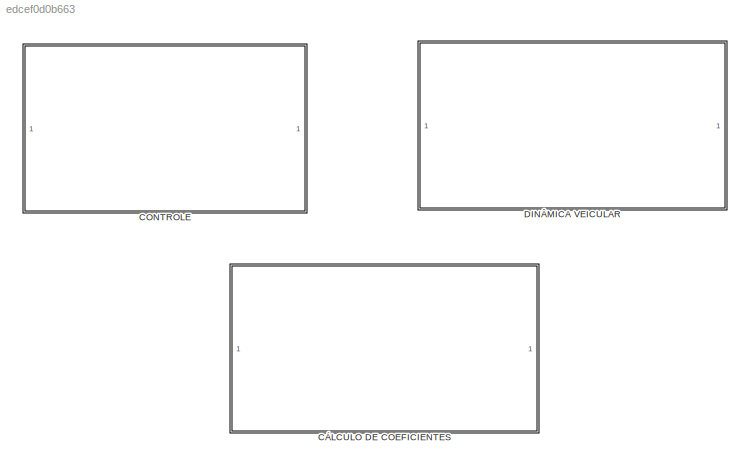
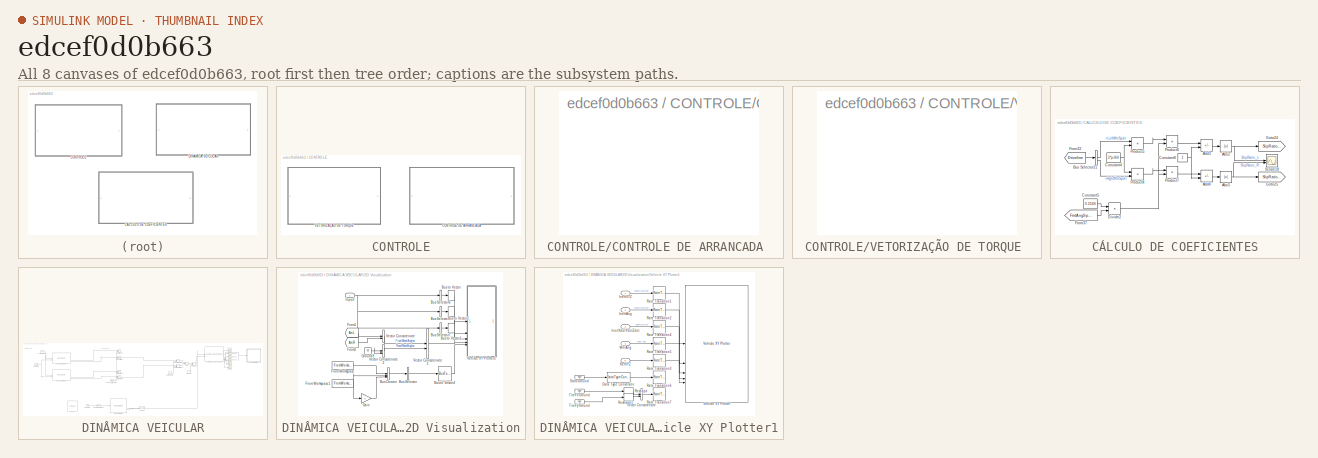
[diagram: thumbnail index - all 8 canvases of the model, root first then tree order]
MODEL slx_edcef0d0b663
KIND model
CONFIG AbsTol = auto
CONFIG EnableMultiTasking = off
CONFIG FixedStep = auto
CONFIG MaxStep = auto
CONFIG MinStep = auto
CONFIG RelTol = 1e-3
CONFIG SampleTimeConstraint = Unconstrained
CONFIG SolverName = VariableStepAuto
CONFIG StartTime = 0.0
CONFIG StopTime = 10.0
BLOCK [SubSystem] CONTROLE
BLOCK [SubSystem] CONTROLE/CONTROLE DE ARRANCADA 
BLOCK [SubSystem] CONTROLE/VETORIZAÇÃO DE TORQUE 
BLOCK [SubSystem] CÁLCULO DE COEFICIENTES
BLOCK [Abs] CÁLCULO DE COEFICIENTES/Abs2
  SaturateOnIntegerOverflow = off
BLOCK [Abs] CÁLCULO DE COEFICIENTES/Abs5
  SaturateOnIntegerOverflow = off
BLOCK [Sum] CÁLCULO DE COEFICIENTES/Add3
  IconShape = rectangular
  Inputs = +-
BLOCK [Sum] CÁLCULO DE COEFICIENTES/Add4
  IconShape = rectangular
  Inputs = +-
BLOCK [BusSelector] CÁLCULO DE COEFICIENTES/Bus Selector21
  OutputSignals = LeftMtrSpd,RghtMtrSpd
BLOCK [Constant] CÁLCULO DE COEFICIENTES/Constant4
  Value = 2*pi/60
BLOCK [Constant] CÁLCULO DE COEFICIENTES/Constant5
  Value = 0.2566
BLOCK [Constant] CÁLCULO DE COEFICIENTES/Constant6
BLOCK [Product] CÁLCULO DE COEFICIENTES/Divide2
  Inputs = */
BLOCK [From] CÁLCULO DE COEFICIENTES/From32
  GotoTag = Driveline
BLOCK [From] CÁLCULO DE COEFICIENTES/From37
  GotoTag = FrntAvgSpeed
BLOCK [Goto] CÁLCULO DE COEFICIENTES/Goto24
  GotoTag = SlipRatio_L
BLOCK [Goto] CÁLCULO DE COEFICIENTES/Goto25
  GotoTag = SlipRatio_R
BLOCK [Product] CÁLCULO DE COEFICIENTES/Product4
BLOCK [Product] CÁLCULO DE COEFICIENTES/Product5
BLOCK [Product] CÁLCULO DE COEFICIENTES/Product6
BLOCK [Product] CÁLCULO DE COEFICIENTES/Product7
BLOCK [Scope] CÁLCULO DE COEFICIENTES/Scope18
  Floating = off
  NumInputPorts = 2
  ScopeSpecificationString = Simulink.scopes.TimeScopeBlockCfg('CurrentConfiguration', extmgr.ConfigurationSet(extmgr.Configuration('Core','General UI',true),extmgr.Configuration('Core','Source UI',true),extmgr.Configuration('Sources','WiredSimulink',true,'DataLoggingVariableName','ScopeData1'),extmgr.Configuration('Visuals','Time Domain',true,'SerializedDisplays',{struct('MinYLimReal','-0.01332','MaxYLimReal','0.12067','YLab...<+1460ch>
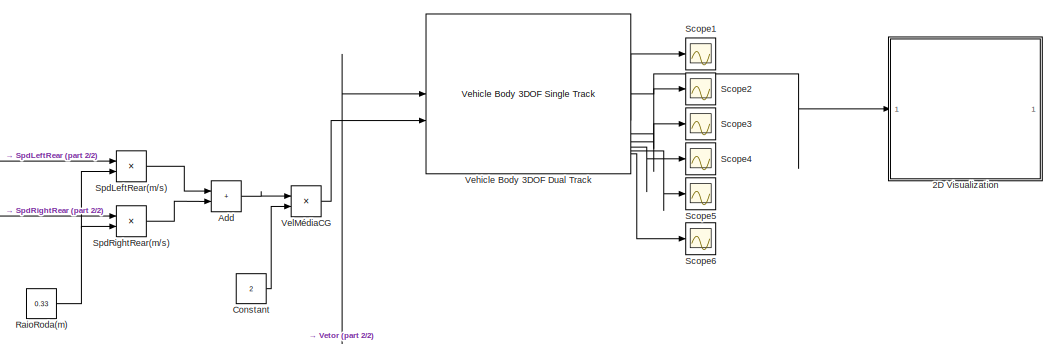
[diagram: DINÂMICA VEICULAR - part 1/2, top right region]
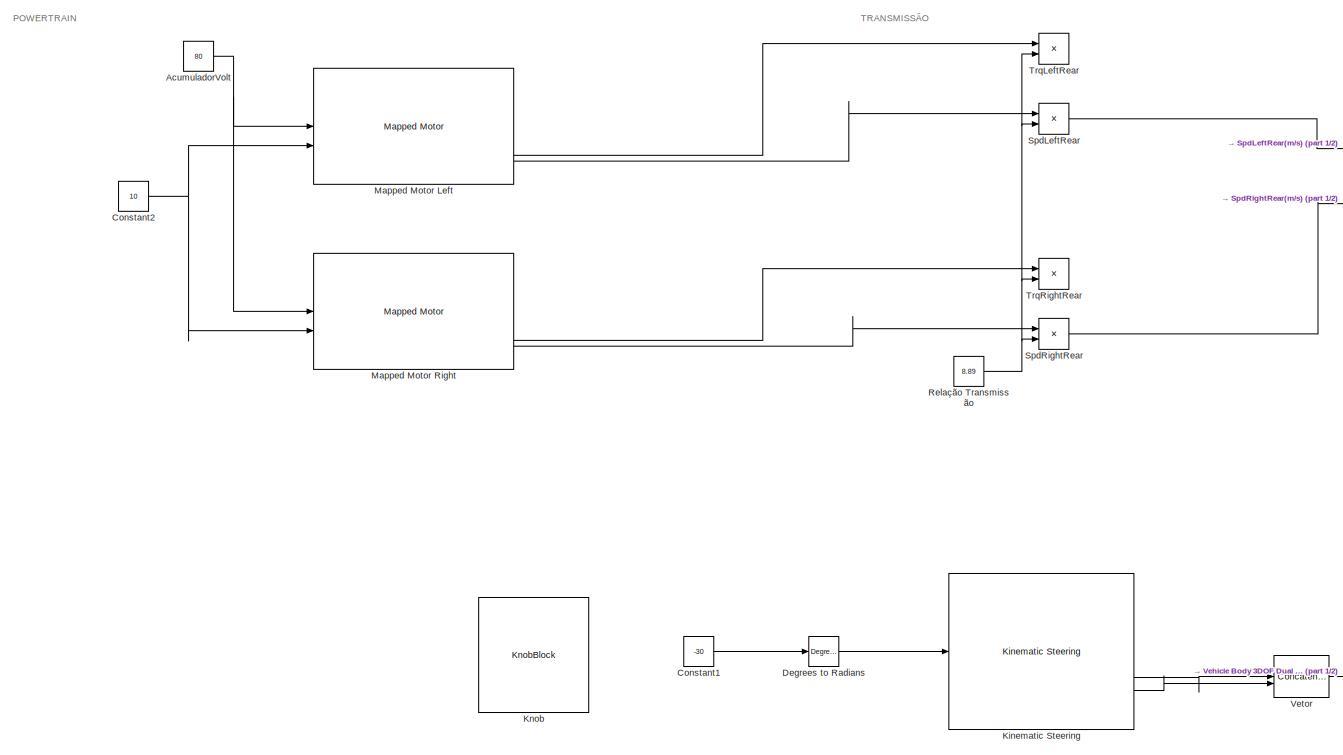
[diagram: DINÂMICA VEICULAR - part 2/2, left side, full height]
BLOCK [SubSystem] DINÂMICA VEICULAR
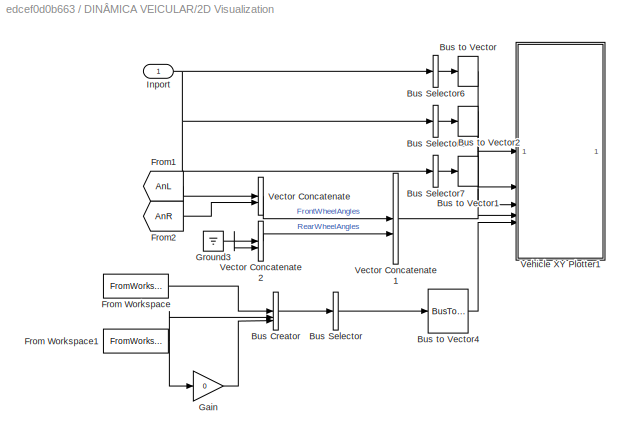
BLOCK [SubSystem] DINÂMICA VEICULAR/2D Visualization
BLOCK [BusCreator] DINÂMICA VEICULAR/2D Visualization/Bus Creator
  DisplayOption = bar
  InheritFromInputs = on
  Inputs = 3
BLOCK [BusSelector] DINÂMICA VEICULAR/2D Visualization/Bus Selector
  OutputAsBus = on
  OutputSignals = signal1,signal2,signal3
BLOCK [BusSelector] DINÂMICA VEICULAR/2D Visualization/Bus Selector1
  OutputAsBus = on
  OutputSignals = InertFrm.Cg.Ang.phi,InertFrm.Cg.Ang.theta,InertFrm.Cg.Ang.psi
BLOCK [BusSelector] DINÂMICA VEICULAR/2D Visualization/Bus Selector6
  OutputAsBus = on
  OutputSignals = InertFrm.Geom.Disp.X,InertFrm.Geom.Disp.Y,InertFrm.Geom.Disp.Z
BLOCK [BusSelector] DINÂMICA VEICULAR/2D Visualization/Bus Selector7
  OutputAsBus = on
  OutputSignals = InertFrm.Geom.Vel.Xdot,InertFrm.Geom.Vel.Ydot,InertFrm.Geom.Vel.Zdot
BLOCK [BusToVector] DINÂMICA VEICULAR/2D Visualization/Bus to Vector
BLOCK [BusToVector] DINÂMICA VEICULAR/2D Visualization/Bus to Vector1
BLOCK [BusToVector] DINÂMICA VEICULAR/2D Visualization/Bus to Vector2
BLOCK [BusToVector] DINÂMICA VEICULAR/2D Visualization/Bus to Vector4
BLOCK [FromWorkspace] DINÂMICA VEICULAR/2D Visualization/From Workspace
  VariableName = [tRef xRef]
BLOCK [FromWorkspace] DINÂMICA VEICULAR/2D Visualization/From Workspace1
  VariableName = [tRef yRef]
BLOCK [From] DINÂMICA VEICULAR/2D Visualization/From1
  GotoTag = AnL
BLOCK [From] DINÂMICA VEICULAR/2D Visualization/From2
  GotoTag = AnR
BLOCK [Gain] DINÂMICA VEICULAR/2D Visualization/Gain
  Gain = 0
BLOCK [Ground] DINÂMICA VEICULAR/2D Visualization/Ground3
BLOCK [Inport] DINÂMICA VEICULAR/2D Visualization/Inport
BLOCK [Concatenate] DINÂMICA VEICULAR/2D Visualization/Vector Concatenate
BLOCK [Concatenate] DINÂMICA VEICULAR/2D Visualization/Vector Concatenate1
BLOCK [Concatenate] DINÂMICA VEICULAR/2D Visualization/Vector Concatenate2
BLOCK [SubSystem] DINÂMICA VEICULAR/2D Visualization/Vehicle XY Plotter1
BLOCK [DataTypeConversion] DINÂMICA VEICULAR/2D Visualization/Vehicle XY Plotter1/Data Type Conversion
  OutDataTypeStr = double
  RndMeth = Floor
  SaturateOnIntegerOverflow = off
BLOCK [Inport] DINÂMICA VEICULAR/2D Visualization/Vehicle XY Plotter1/InertAng
  Port = 2
BLOCK [Inport] DINÂMICA VEICULAR/2D Visualization/Vehicle XY Plotter1/InertXYZ
BLOCK [Inport] DINÂMICA VEICULAR/2D Visualization/Vehicle XY Plotter1/InertXdotYdotZdot
  Port = 3
BLOCK [RateTransition] DINÂMICA VEICULAR/2D Visualization/Vehicle XY Plotter1/Rate Transition1
  Deterministic = off
  OutPortSampleTime = pltDT
BLOCK [RateTransition] DINÂMICA VEICULAR/2D Visualization/Vehicle XY Plotter1/Rate Transition2
  Deterministic = off
  OutPortSampleTime = pltDT
BLOCK [RateTransition] DINÂMICA VEICULAR/2D Visualization/Vehicle XY Plotter1/Rate Transition3
  Deterministic = off
  OutPortSampleTime = pltDT
BLOCK [RateTransition] DINÂMICA VEICULAR/2D Visualization/Vehicle XY Plotter1/Rate Transition4
  Deterministic = off
  OutPortSampleTime = pltDT
BLOCK [RateTransition] DINÂMICA VEICULAR/2D Visualization/Vehicle XY Plotter1/Rate Transition5
  Deterministic = off
  OutPortSampleTime = pltDT
BLOCK [RateTransition] DINÂMICA VEICULAR/2D Visualization/Vehicle XY Plotter1/Rate Transition6
  Deterministic = off
  OutPortSampleTime = pltDT
BLOCK [RateTransition] DINÂMICA VEICULAR/2D Visualization/Vehicle XY Plotter1/Rate Transition7
  Deterministic = off
  OutPortSampleTime = pltDT
BLOCK [Inport] DINÂMICA VEICULAR/2D Visualization/Vehicle XY Plotter1/RefXYZ
  Port = 5
BLOCK [Reshape] DINÂMICA VEICULAR/2D Visualization/Vehicle XY Plotter1/Reshape
  OutputDimensionality = Row vector (2-D)
BLOCK [Reshape] DINÂMICA VEICULAR/2D Visualization/Vehicle XY Plotter1/Reshape1
  OutputDimensionality = Row vector (2-D)
BLOCK [Ground] DINÂMICA VEICULAR/2D Visualization/Vehicle XY Plotter1/Stats Ground
BLOCK [Ground] DINÂMICA VEICULAR/2D Visualization/Vehicle XY Plotter1/TireFx Ground
BLOCK [Ground] DINÂMICA VEICULAR/2D Visualization/Vehicle XY Plotter1/TireFy Ground
BLOCK [Concatenate] DINÂMICA VEICULAR/2D Visualization/Vehicle XY Plotter1/Vector Concatenate
  Mode = Multidimensional array
BLOCK [Reference] DINÂMICA VEICULAR/2D Visualization/Vehicle XY Plotter1/Vehicle XY Plotter  REF=vehdynlibviscommon/Vehicle XY Plotter
  SourceBlock = vehdynlibviscommon/Vehicle XY Plotter
  SourceType = Vehicle XY Plotter
BLOCK [Inport] DINÂMICA VEICULAR/2D Visualization/Vehicle XY Plotter1/WhlAng
  Port = 4
BLOCK [Constant] DINÂMICA VEICULAR/AcumuladorVolt
  Value = 80
BLOCK [Sum] DINÂMICA VEICULAR/Add
  IconShape = rectangular
BLOCK [Constant] DINÂMICA VEICULAR/Constant
  Value = 2
BLOCK [Constant] DINÂMICA VEICULAR/Constant1
  OutMax = 30
  OutMin = -30
  Value = -30
BLOCK [Constant] DINÂMICA VEICULAR/Constant2
  Value = 10
BLOCK [Reference] DINÂMICA VEICULAR/Degrees to Radians  REF=simulink_extras/Transformations/Degrees to
Radians
  SourceBlock = simulink_extras/Transformations/Degrees to\nRadians
  SourceType = DegreesToRadians
BLOCK [Reference] DINÂMICA VEICULAR/Kinematic Steering  REF=vehdynlibsteering/Kinematic Steering
  SourceBlock = vehdynlibsteering/Kinematic Steering
  SourceType = Kinematic Steering
BLOCK [KnobBlock] DINÂMICA VEICULAR/Knob
  ScaleMax = 30
  ScaleMin = -30
BLOCK [Reference] DINÂMICA VEICULAR/Mapped Motor Left  REF=autolibmappedmotor/Mapped Motor
  LibrarySourceBlock = vdynlib/Powertrain/Propulsion/Mapped Motor
  SourceBlock = autolibmappedmotor/Mapped Motor
  SourceType = MappedMotor
BLOCK [Reference] DINÂMICA VEICULAR/Mapped Motor Right  REF=autolibmappedmotor/Mapped Motor
  LibrarySourceBlock = vdynlib/Powertrain/Propulsion/Mapped Motor
  SourceBlock = autolibmappedmotor/Mapped Motor
  SourceType = MappedMotor
BLOCK [Constant] DINÂMICA VEICULAR/RaioRoda(m)
  Value = 0.33
  VectorParams1D = off
BLOCK [Constant] DINÂMICA VEICULAR/Relação Transmissão
  Value = 8.89
BLOCK [Scope] DINÂMICA VEICULAR/Scope1
  Floating = off
  NumInputPorts = 1
  ScopeSpecificationString = Simulink.scopes.TimeScopeBlockCfg('CurrentConfiguration', extmgr.ConfigurationSet(extmgr.Configuration('Core','General UI',true),extmgr.Configuration('Core','Source UI',true),extmgr.Configuration('Sources','WiredSimulink',true,'DataLoggingVariableName','ScopeData1'),extmgr.Configuration('Visuals','Time Domain',true,'SerializedDisplays',{struct('MinYLimReal','-3.68571','MaxYLimReal','33.17139','YLa...<+1482ch>
BLOCK [Scope] DINÂMICA VEICULAR/Scope2
  Floating = off
  NumInputPorts = 1
  ScopeSpecificationString = Simulink.scopes.TimeScopeBlockCfg('CurrentConfiguration', extmgr.ConfigurationSet(extmgr.Configuration('Core','General UI',true),extmgr.Configuration('Core','Source UI',true),extmgr.Configuration('Sources','WiredSimulink',true),extmgr.Configuration('Visuals','Time Domain',true,'SerializedDisplays',{struct('MinYLimReal','-1.20827','MaxYLimReal','6.62524','YLabelReal','','MinYLimMag','0.00000','MaxY...<+1466ch>
BLOCK [Scope] DINÂMICA VEICULAR/Scope3
  Floating = off
  NumInputPorts = 1
  ScopeSpecificationString = Simulink.scopes.TimeScopeBlockCfg('CurrentConfiguration', extmgr.ConfigurationSet(extmgr.Configuration('Core','General UI',true),extmgr.Configuration('Core','Source UI',true),extmgr.Configuration('Sources','WiredSimulink',true,'DataLoggingVariableName','ScopeData2'),extmgr.Configuration('Visuals','Time Domain',true,'SerializedDisplays',{struct('MinYLimReal','-0.14479','MaxYLimReal','1.30312','YLab...<+1480ch>
BLOCK [Scope] DINÂMICA VEICULAR/Scope4
  Floating = off
  NumInputPorts = 1
  ScopeSpecificationString = Simulink.scopes.TimeScopeBlockCfg('CurrentConfiguration', extmgr.ConfigurationSet(extmgr.Configuration('Core','General UI',true),extmgr.Configuration('Core','Source UI',true),extmgr.Configuration('Sources','WiredSimulink',true,'DataLoggingVariableName','ScopeData3'),extmgr.Configuration('Visuals','Time Domain',true,'SerializedDisplays',{struct('MinYLimReal','-0.25195','MaxYLimReal','0.0459','YLabe...<+1476ch>
BLOCK [Scope] DINÂMICA VEICULAR/Scope5
  Floating = off
  NumInputPorts = 1
  ScopeSpecificationString = Simulink.scopes.TimeScopeBlockCfg('CurrentConfiguration', extmgr.ConfigurationSet(extmgr.Configuration('Core','General UI',true),extmgr.Configuration('Core','Source UI',true),extmgr.Configuration('Sources','WiredSimulink',true,'DataLoggingVariableName','ScopeData4'),extmgr.Configuration('Visuals','Time Domain',true,'SerializedDisplays',{struct('MinYLimReal','3759.37292','MaxYLimReal','6539.39321',...<+1537ch>
BLOCK [Scope] DINÂMICA VEICULAR/Scope6
  Floating = off
  NumInputPorts = 1
  ScopeSpecificationString = Simulink.scopes.TimeScopeBlockCfg('CurrentConfiguration', extmgr.ConfigurationSet(extmgr.Configuration('Core','General UI',true),extmgr.Configuration('Core','Source UI',true),extmgr.Configuration('Sources','WiredSimulink',true,'DataLoggingVariableName','ScopeData5'),extmgr.Configuration('Visuals','Time Domain',true,'SerializedDisplays',{struct('MinYLimReal','3329.0279','MaxYLimReal','6109.04819','...<+1533ch>
BLOCK [Product] DINÂMICA VEICULAR/SpdLeftRear
  Inputs = */
BLOCK [Product] DINÂMICA VEICULAR/SpdLeftRear(m//s)
BLOCK [Product] DINÂMICA VEICULAR/SpdRightRear
  Inputs = */
BLOCK [Product] DINÂMICA VEICULAR/SpdRightRear(m//s)
BLOCK [Product] DINÂMICA VEICULAR/TrqLeftRear
BLOCK [Product] DINÂMICA VEICULAR/TrqRightRear
BLOCK [Reference] DINÂMICA VEICULAR/Vehicle Body 3DOF Dual Track  REF=autolibshared/Vehicle Body 3DOF Single Track
  LibrarySourceBlock = vehdynlibeom/Vehicle Body 3DOF Dual Track
  SourceBlock = autolibshared/Vehicle Body 3DOF Single Track
  SourceType = Vehicle Body 3DOF Lateral
BLOCK [Product] DINÂMICA VEICULAR/VelMédiaCG
  Inputs = */
BLOCK [Concatenate] DINÂMICA VEICULAR/Vetor
  ConcatenateDimension = 2
ANNOTATION DINÂMICA VEICULAR: POWERTRAIN
ANNOTATION DINÂMICA VEICULAR: TRANSMISSÃO
NET CÁLCULO DE COEFICIENTES/Abs2:1 -> CÁLCULO DE COEFICIENTES/Goto24:1, CÁLCULO DE COEFICIENTES/Scope18:1
NET CÁLCULO DE COEFICIENTES/Abs5:1 -> CÁLCULO DE COEFICIENTES/Goto25:1, CÁLCULO DE COEFICIENTES/Scope18:2
LINE CÁLCULO DE COEFICIENTES/Add3:1 -> CÁLCULO DE COEFICIENTES/Abs2:1
LINE CÁLCULO DE COEFICIENTES/Add4:1 -> CÁLCULO DE COEFICIENTES/Abs5:1
LINE CÁLCULO DE COEFICIENTES/Bus Selector21:1 -> CÁLCULO DE COEFICIENTES/Product5:1
LINE CÁLCULO DE COEFICIENTES/Bus Selector21:2 -> CÁLCULO DE COEFICIENTES/Product4:2
NET CÁLCULO DE COEFICIENTES/Constant4:1 -> CÁLCULO DE COEFICIENTES/Product4:1, CÁLCULO DE COEFICIENTES/Product5:2
LINE CÁLCULO DE COEFICIENTES/Constant5:1 -> CÁLCULO DE COEFICIENTES/Divide2:1
NET CÁLCULO DE COEFICIENTES/Constant6:1 -> CÁLCULO DE COEFICIENTES/Add3:2, CÁLCULO DE COEFICIENTES/Add4:2
NET CÁLCULO DE COEFICIENTES/Divide2:1 -> CÁLCULO DE COEFICIENTES/Product6:2, CÁLCULO DE COEFICIENTES/Product7:2
LINE CÁLCULO DE COEFICIENTES/From32:1 -> CÁLCULO DE COEFICIENTES/Bus Selector21:1
LINE CÁLCULO DE COEFICIENTES/From37:1 -> CÁLCULO DE COEFICIENTES/Divide2:2
LINE CÁLCULO DE COEFICIENTES/Product4:1 -> CÁLCULO DE COEFICIENTES/Product7:1
LINE CÁLCULO DE COEFICIENTES/Product5:1 -> CÁLCULO DE COEFICIENTES/Product6:1
LINE CÁLCULO DE COEFICIENTES/Product6:1 -> CÁLCULO DE COEFICIENTES/Add3:1
LINE CÁLCULO DE COEFICIENTES/Product7:1 -> CÁLCULO DE COEFICIENTES/Add4:1
LINE DINÂMICA VEICULAR/2D Visualization/Bus Creator:1 -> DINÂMICA VEICULAR/2D Visualization/Bus Selector:1
LINE DINÂMICA VEICULAR/2D Visualization/Bus Selector1:1 -> DINÂMICA VEICULAR/2D Visualization/Bus to Vector2:1
LINE DINÂMICA VEICULAR/2D Visualization/Bus Selector6:1 -> DINÂMICA VEICULAR/2D Visualization/Bus to Vector:1
LINE DINÂMICA VEICULAR/2D Visualization/Bus Selector7:1 -> DINÂMICA VEICULAR/2D Visualization/Bus to Vector1:1
LINE DINÂMICA VEICULAR/2D Visualization/Bus Selector:1 -> DINÂMICA VEICULAR/2D Visualization/Bus to Vector4:1
LINE DINÂMICA VEICULAR/2D Visualization/Bus to Vector1:1 -> DINÂMICA VEICULAR/2D Visualization/Vehicle XY Plotter1:3
LINE DINÂMICA VEICULAR/2D Visualization/Bus to Vector2:1 -> DINÂMICA VEICULAR/2D Visualization/Vehicle XY Plotter1:2
LINE DINÂMICA VEICULAR/2D Visualization/Bus to Vector4:1 -> DINÂMICA VEICULAR/2D Visualization/Vehicle XY Plotter1:5
LINE DINÂMICA VEICULAR/2D Visualization/Bus to Vector:1 -> DINÂMICA VEICULAR/2D Visualization/Vehicle XY Plotter1:1
NET DINÂMICA VEICULAR/2D Visualization/From Workspace1:1 -> DINÂMICA VEICULAR/2D Visualization/Bus Creator:2, DINÂMICA VEICULAR/2D Visualization/Gain:1
LINE DINÂMICA VEICULAR/2D Visualization/From Workspace:1 -> DINÂMICA VEICULAR/2D Visualization/Bus Creator:1
LINE DINÂMICA VEICULAR/2D Visualization/From1:1 -> DINÂMICA VEICULAR/2D Visualization/Vector Concatenate:1
LINE DINÂMICA VEICULAR/2D Visualization/From2:1 -> DINÂMICA VEICULAR/2D Visualization/Vector Concatenate:2
LINE DINÂMICA VEICULAR/2D Visualization/Gain:1 -> DINÂMICA VEICULAR/2D Visualization/Bus Creator:3
NET DINÂMICA VEICULAR/2D Visualization/Ground3:1 -> DINÂMICA VEICULAR/2D Visualization/Vector Concatenate2:1, DINÂMICA VEICULAR/2D Visualization/Vector Concatenate2:2
NET DINÂMICA VEICULAR/2D Visualization/Inport:1 -> DINÂMICA VEICULAR/2D Visualization/Bus Selector1:1, DINÂMICA VEICULAR/2D Visualization/Bus Selector6:1, DINÂMICA VEICULAR/2D Visualization/Bus Selector7:1
LINE DINÂMICA VEICULAR/2D Visualization/Vector Concatenate1:1 -> DINÂMICA VEICULAR/2D Visualization/Vehicle XY Plotter1:4
LINE DINÂMICA VEICULAR/2D Visualization/Vector Concatenate2:1 -> DINÂMICA VEICULAR/2D Visualization/Vector Concatenate1:2
LINE DINÂMICA VEICULAR/2D Visualization/Vector Concatenate:1 -> DINÂMICA VEICULAR/2D Visualization/Vector Concatenate1:1
LINE DINÂMICA VEICULAR/2D Visualization/Vehicle XY Plotter1/Data Type Conversion:1 -> DINÂMICA VEICULAR/2D Visualization/Vehicle XY Plotter1/Rate Transition6:1
LINE DINÂMICA VEICULAR/2D Visualization/Vehicle XY Plotter1/InertAng:1 -> DINÂMICA VEICULAR/2D Visualization/Vehicle XY Plotter1/Rate Transition2:1
LINE DINÂMICA VEICULAR/2D Visualization/Vehicle XY Plotter1/InertXYZ:1 -> DINÂMICA VEICULAR/2D Visualization/Vehicle XY Plotter1/Rate Transition1:1
LINE DINÂMICA VEICULAR/2D Visualization/Vehicle XY Plotter1/InertXdotYdotZdot:1 -> DINÂMICA VEICULAR/2D Visualization/Vehicle XY Plotter1/Rate Transition4:1
LINE DINÂMICA VEICULAR/2D Visualization/Vehicle XY Plotter1/Rate Transition1:1 -> DINÂMICA VEICULAR/2D Visualization/Vehicle XY Plotter1/Vehicle XY Plotter:1
LINE DINÂMICA VEICULAR/2D Visualization/Vehicle XY Plotter1/Rate Transition2:1 -> DINÂMICA VEICULAR/2D Visualization/Vehicle XY Plotter1/Vehicle XY Plotter:2
LINE DINÂMICA VEICULAR/2D Visualization/Vehicle XY Plotter1/Rate Transition3:1 -> DINÂMICA VEICULAR/2D Visualization/Vehicle XY Plotter1/Vehicle XY Plotter:5
LINE DINÂMICA VEICULAR/2D Visualization/Vehicle XY Plotter1/Rate Transition4:1 -> DINÂMICA VEICULAR/2D Visualization/Vehicle XY Plotter1/Vehicle XY Plotter:3
LINE DINÂMICA VEICULAR/2D Visualization/Vehicle XY Plotter1/Rate Transition5:1 -> DINÂMICA VEICULAR/2D Visualization/Vehicle XY Plotter1/Vehicle XY Plotter:4
LINE DINÂMICA VEICULAR/2D Visualization/Vehicle XY Plotter1/RefXYZ:1 -> DINÂMICA VEICULAR/2D Visualization/Vehicle XY Plotter1/Rate Transition3:1
LINE DINÂMICA VEICULAR/2D Visualization/Vehicle XY Plotter1/Reshape1:1 -> DINÂMICA VEICULAR/2D Visualization/Vehicle XY Plotter1/Vector Concatenate:2
LINE DINÂMICA VEICULAR/2D Visualization/Vehicle XY Plotter1/Reshape:1 -> DINÂMICA VEICULAR/2D Visualization/Vehicle XY Plotter1/Vector Concatenate:1
LINE DINÂMICA VEICULAR/2D Visualization/Vehicle XY Plotter1/Stats Ground:1 -> DINÂMICA VEICULAR/2D Visualization/Vehicle XY Plotter1/Data Type Conversion:1
LINE DINÂMICA VEICULAR/2D Visualization/Vehicle XY Plotter1/TireFx Ground:1 -> DINÂMICA VEICULAR/2D Visualization/Vehicle XY Plotter1/Reshape:1
LINE DINÂMICA VEICULAR/2D Visualization/Vehicle XY Plotter1/TireFy Ground:1 -> DINÂMICA VEICULAR/2D Visualization/Vehicle XY Plotter1/Reshape1:1
LINE DINÂMICA VEICULAR/2D Visualization/Vehicle XY Plotter1/Vector Concatenate:1 -> DINÂMICA VEICULAR/2D Visualization/Vehicle XY Plotter1/Rate Transition7:1
LINE DINÂMICA VEICULAR/2D Visualization/Vehicle XY Plotter1/WhlAng:1 -> DINÂMICA VEICULAR/2D Visualization/Vehicle XY Plotter1/Rate Transition5:1
NET DINÂMICA VEICULAR/AcumuladorVolt:1 -> DINÂMICA VEICULAR/Mapped Motor Left:1, DINÂMICA VEICULAR/Mapped Motor Right:1
LINE DINÂMICA VEICULAR/Add:1 -> DINÂMICA VEICULAR/VelMédiaCG:1
LINE DINÂMICA VEICULAR/Constant1:1 -> DINÂMICA VEICULAR/Degrees to Radians:1
NET DINÂMICA VEICULAR/Constant2:1 -> DINÂMICA VEICULAR/Mapped Motor Left:2, DINÂMICA VEICULAR/Mapped Motor Right:2
LINE DINÂMICA VEICULAR/Constant:1 -> DINÂMICA VEICULAR/VelMédiaCG:2
LINE DINÂMICA VEICULAR/Degrees to Radians:1 -> DINÂMICA VEICULAR/Kinematic Steering:1
LINE DINÂMICA VEICULAR/Kinematic Steering:2 -> DINÂMICA VEICULAR/Vetor:1
LINE DINÂMICA VEICULAR/Kinematic Steering:3 -> DINÂMICA VEICULAR/Vetor:2
LINE DINÂMICA VEICULAR/Mapped Motor Left:3 -> DINÂMICA VEICULAR/TrqLeftRear:1
LINE DINÂMICA VEICULAR/Mapped Motor Left:4 -> DINÂMICA VEICULAR/SpdLeftRear:1
LINE DINÂMICA VEICULAR/Mapped Motor Right:3 -> DINÂMICA VEICULAR/TrqRightRear:1
LINE DINÂMICA VEICULAR/Mapped Motor Right:4 -> DINÂMICA VEICULAR/SpdRightRear:1
NET DINÂMICA VEICULAR/RaioRoda(m):1 -> DINÂMICA VEICULAR/SpdLeftRear(m//s):2, DINÂMICA VEICULAR/SpdRightRear(m//s):2
NET DINÂMICA VEICULAR/Relação Transmissão:1 -> DINÂMICA VEICULAR/SpdLeftRear:2, DINÂMICA VEICULAR/SpdRightRear:2, DINÂMICA VEICULAR/TrqLeftRear:2, DINÂMICA VEICULAR/TrqRightRear:2
LINE DINÂMICA VEICULAR/SpdLeftRear(m//s):1 -> DINÂMICA VEICULAR/Add:1
LINE DINÂMICA VEICULAR/SpdLeftRear:1 -> DINÂMICA VEICULAR/SpdLeftRear(m//s):1
LINE DINÂMICA VEICULAR/SpdRightRear(m//s):1 -> DINÂMICA VEICULAR/Add:2
LINE DINÂMICA VEICULAR/SpdRightRear:1 -> DINÂMICA VEICULAR/SpdRightRear(m//s):1
LINE DINÂMICA VEICULAR/Vehicle Body 3DOF Dual Track:1 -> DINÂMICA VEICULAR/2D Visualization:1
LINE DINÂMICA VEICULAR/Vehicle Body 3DOF Dual Track:2 -> DINÂMICA VEICULAR/Scope1:1
LINE DINÂMICA VEICULAR/Vehicle Body 3DOF Dual Track:3 -> DINÂMICA VEICULAR/Scope2:1
LINE DINÂMICA VEICULAR/Vehicle Body 3DOF Dual Track:4 -> DINÂMICA VEICULAR/Scope3:1
LINE DINÂMICA VEICULAR/Vehicle Body 3DOF Dual Track:5 -> DINÂMICA VEICULAR/Scope4:1
LINE DINÂMICA VEICULAR/Vehicle Body 3DOF Dual Track:6 -> DINÂMICA VEICULAR/Scope5:1
LINE DINÂMICA VEICULAR/Vehicle Body 3DOF Dual Track:7 -> DINÂMICA VEICULAR/Scope6:1
LINE DINÂMICA VEICULAR/VelMédiaCG:1 -> DINÂMICA VEICULAR/Vehicle Body 3DOF Dual Track:2
LINE DINÂMICA VEICULAR/Vetor:1 -> DINÂMICA VEICULAR/Vehicle Body 3DOF Dual Track:1
note: NET lines group one-source signal fan-out (src -> all destinations, sorted); 1:1 wires keep LINE
